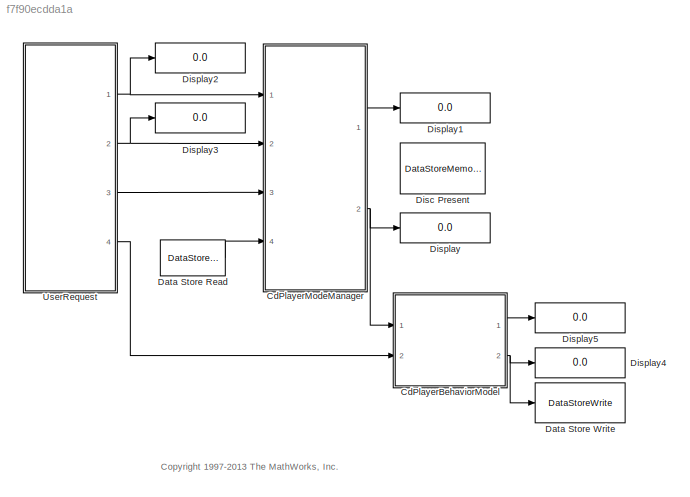
MODEL slx_f7f90ecdda1a
KIND model
CONFIG AbsTol = auto
CONFIG EnableMultiTasking = on
CONFIG FixedStep = 1
CONFIG MaxStep = auto
CONFIG MinStep = auto
CONFIG PreLoadFcn = defaultRadioRequestMode = RadioRequestMode.OFF;\ndefaultCdRequestMode = CdRequestMode.EMPTY;\n
CONFIG RelTol = 1e-3
CONFIG SampleTimeConstraint = Unconstrained
CONFIG Solver = FixedStepDiscrete
CONFIG SolverName = FixedStepDiscrete
CONFIG StartFcn = clear sfcdplayerhelper;\nsfcdplayergui;\n
CONFIG StartTime = 0.0
CONFIG StopFcn = delete(sfcdplayergui);
CONFIG StopTime = inf
WORKSPACE source: MATLAB code (in-file)
WORKSPACE Ts = 0.01
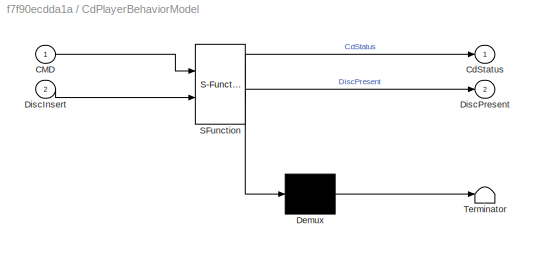
BLOCK [SubSystem] CdPlayerBehaviorModel
  ErrorFcn = Stateflow.Translate.translate
  PermitHierarchicalResolution = ExplicitOnly
  Ports = [2, 2]
  RequestExecContextInheritance = off
  SFBlockType = Chart
  TreatAsAtomicUnit = on
  Variant = off
BLOCK [Demux] CdPlayerBehaviorModel/ Demux 
  Outputs = 1
  Ports = [1, 1]
BLOCK [Outport] CdPlayerBehaviorModel/ DiscPresent
  IconDisplay = Port number
  Port = 2
BLOCK [S-Function] CdPlayerBehaviorModel/ SFunction 
  EnableBusSupport = off
  FunctionName = sf_sfun
  Parameters = Ts
  PortCounts = [2 3]
  Ports = [2, 3]
  SFcnIsStateOwnerBlock = off
  SFunctionDeploymentMode = off
  Tag = Stateflow S-Function sf_cdplayer 4
BLOCK [Terminator] CdPlayerBehaviorModel/ Terminator 
BLOCK [Inport] CdPlayerBehaviorModel/CMD
  IconDisplay = Port number
BLOCK [Outport] CdPlayerBehaviorModel/CdStatus
  IconDisplay = Port number
BLOCK [Inport] CdPlayerBehaviorModel/DiscInsert
  IconDisplay = Port number
  Port = 2
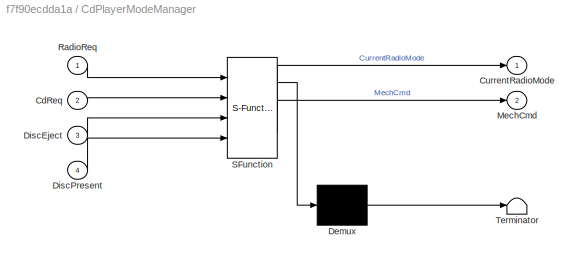
BLOCK [SubSystem] CdPlayerModeManager
  ErrorFcn = Stateflow.Translate.translate
  PermitHierarchicalResolution = ExplicitOnly
  Ports = [4, 2]
  RequestExecContextInheritance = off
  SFBlockType = Chart
  TreatAsAtomicUnit = on
  Variant = off
BLOCK [Demux] CdPlayerModeManager/ Demux 
  Outputs = 1
  Ports = [1, 1]
BLOCK [S-Function] CdPlayerModeManager/ SFunction 
  EnableBusSupport = off
  FunctionName = sf_sfun
  PortCounts = [4 3]
  Ports = [4, 3]
  SFcnIsStateOwnerBlock = off
  SFunctionDeploymentMode = off
  Tag = Stateflow S-Function sf_cdplayer 1
BLOCK [Terminator] CdPlayerModeManager/ Terminator 
BLOCK [Inport] CdPlayerModeManager/CdReq
  IconDisplay = Port number
  Port = 2
BLOCK [Outport] CdPlayerModeManager/CurrentRadioMode
  IconDisplay = Port number
BLOCK [Inport] CdPlayerModeManager/DiscEject
  IconDisplay = Port number
  Port = 3
BLOCK [Inport] CdPlayerModeManager/DiscPresent
  IconDisplay = Port number
  Port = 4
BLOCK [Outport] CdPlayerModeManager/MechCmd
  IconDisplay = Port number
  Port = 2
BLOCK [Inport] CdPlayerModeManager/RadioReq
  IconDisplay = Port number
BLOCK [DataStoreRead] Data Store Read
  DataStoreName = DiscPresent
  Ports = [0, 1]
  SampleTime = 0
BLOCK [DataStoreWrite] Data Store Write
  DataStoreName = DiscPresent
  Ports = [1]
BLOCK [DataStoreMemory] Disc Present
  DataStoreName = DiscPresent
  ShowAdditionalParam = off
BLOCK [Display] Display
  Decimation = 1
  Ports = [1]
BLOCK [Display] Display1
  Decimation = 1
  Ports = [1]
BLOCK [Display] Display2
  Decimation = 1
  Ports = [1]
BLOCK [Display] Display3
  Decimation = 1
  Ports = [1]
BLOCK [Display] Display4
  Decimation = 1
  Ports = [1]
BLOCK [Display] Display5
  Decimation = 1
  Ports = [1]
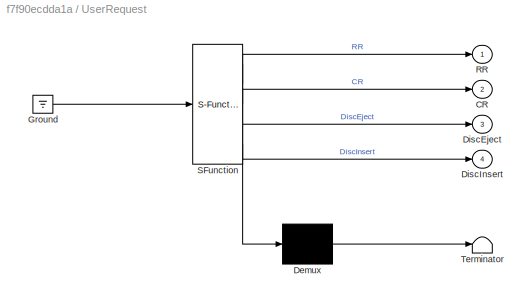
BLOCK [SubSystem] UserRequest
  ErrorFcn = Stateflow.Translate.translate
  PermitHierarchicalResolution = ExplicitOnly
  Ports = [0, 4]
  RequestExecContextInheritance = off
  SFBlockType = Chart
  TreatAsAtomicUnit = on
  Variant = off
BLOCK [Demux] UserRequest/ Demux 
  Outputs = 1
  Ports = [1, 1]
BLOCK [Ground] UserRequest/ Ground 
BLOCK [S-Function] UserRequest/ SFunction 
  EnableBusSupport = off
  FunctionName = sf_sfun
  PortCounts = [1 5]
  Ports = [1, 5]
  SFcnIsStateOwnerBlock = off
  SFunctionDeploymentMode = off
  Tag = Stateflow S-Function sf_cdplayer 2
BLOCK [Terminator] UserRequest/ Terminator 
BLOCK [Outport] UserRequest/CR
  IconDisplay = Port number
  Port = 2
BLOCK [Outport] UserRequest/DiscEject
  IconDisplay = Port number
  Port = 3
BLOCK [Outport] UserRequest/DiscInsert
  IconDisplay = Port number
  Port = 4
BLOCK [Outport] UserRequest/RR
  IconDisplay = Port number
ANNOTATION (root): <copyright redacted>
LINE CdPlayerBehaviorModel:1 -> Display5:1
NET CdPlayerBehaviorModel:2 -> Data Store Write:1, Display4:1
LINE CdPlayerModeManager:1 -> Display1:1
NET CdPlayerModeManager:2 -> CdPlayerBehaviorModel:1, Display:1
LINE Data Store Read:1 -> CdPlayerModeManager:4
NET UserRequest:1 -> CdPlayerModeManager:1, Display2:1
NET UserRequest:2 -> CdPlayerModeManager:2, Display3:1
LINE UserRequest:3 -> CdPlayerModeManager:3
LINE UserRequest:4 -> CdPlayerBehaviorModel:2
note: NET lines group one-source signal fan-out (src -> all destinations, sorted); 1:1 wires keep LINE
CHART CdPlayerModeManager states=12 transitions=22
  STATE_LABEL 'ModeManager'
  STATE_LABEL 'Standby\nentry: CurrentRadioMode = OFF;\nMechCmd = STOP;'
  STATE_LABEL 'ON'
  STATE_LABEL 'CDMode\nen:\nCurrentRadioMode = CD;\nMechCmd = STOP;\nex: MechCmd = STOP;'
  STATE_LABEL 'Play'
  STATE_LABEL 'Normal\nentry: MechCmd = PLAY;'
  STATE_LABEL 'Rew\nentry: MechCmd = REW;'
  STATE_LABEL 'FastForward\nentry: MechCmd = FF;'
  STATE_LABEL '[CdReq == PLAY && !in(Normal)]'
  STATE_LABEL '[CdReq == REW && !in(Rew)]'
  STATE_LABEL '[CdReq == FF && !in(FastForward)]'
  STATE_LABEL 'Stop\nentry: MechCmd = STOP;'
  STATE_LABEL '[DiscPresent]'
  STATE_LABEL '[CdReq==STOP]'
  STATE_LABEL '[DiscPresent && CdReq==PLAY]'
  STATE_LABEL 'AMMode\nentry:\nCurrentRadioMode = AM;\nMechCmd = STOP;'
  STATE_LABEL 'FMMode\nentry:\nCurrentRadioMode = FM;\nMechCmd = STOP;'
  STATE_LABEL '[RadioReq==CD]'
  STATE_LABEL '[hasChanged(RadioReq)]'
  STATE_LABEL '[RadioReq==AM]'
  STATE_LABEL '/*RadioReq==FM*/'
  STATE_LABEL 'H'
  STATE_LABEL '[RadioReq != OFF]'
  STATE_LABEL '[RadioReq == OFF]'
  STATE_LABEL 'H'
  STATE_LABEL 'Standby\nentry: CurrentRadioMode = OFF;\nMechCmd = STOP;'
  STATE_LABEL 'ON'
  STATE_LABEL 'CDMode\nen:\nCurrentRadioMode = CD;\nMechCmd = STOP;\nex: MechCmd = STOP;'
  STATE_LABEL 'Play'
  STATE_LABEL 'Normal\nentry: MechCmd = PLAY;'
  STATE_LABEL 'Rew\nentry: MechCmd = REW;'
  STATE_LABEL 'FastForward\nentry: MechCmd = FF;'
  STATE_LABEL '[CdReq == PLAY && !in(Normal)]'
  STATE_LABEL '[CdReq == REW && !in(Rew)]'
  STATE_LABEL '[CdReq == FF && !in(FastForward)]'
  STATE_LABEL 'Stop\nentry: MechCmd = STOP;'
  STATE_LABEL '[DiscPresent]'
  STATE_LABEL '[CdReq==STOP]'
  STATE_LABEL '[DiscPresent && CdReq==PLAY]'
  STATE_LABEL 'AMMode\nentry:\nCurrentRadioMode = AM;\nMechCmd = STOP;'
CHART UserRequest states=0 transitions=2
CHART CdPlayerBehaviorModel states=8 transitions=10
  STATE_LABEL 'Empty\nCdStatus = EMPTY;'
  STATE_LABEL 'Inserting\nCdStatus = DISCINSERT;'
  STATE_LABEL 'Ejecting\nCdStatus = EJECT;'
  STATE_LABEL 'DiscPresent'
  STATE_LABEL 'STOP\nCdStatus = STOP;'
  STATE_LABEL 'PLAY\nCdStatus = PLAY;'
  STATE_LABEL 'REW\nCdStatus = REW;'
  STATE_LABEL 'FF\nCdStatus = FF;'
  STATE_LABEL '[CMD == STOP]'
  STATE_LABEL '[CMD == PLAY]'
  STATE_LABEL '[CMD == REW]'
  STATE_LABEL '[CMD == FF]'
  STATE_LABEL 'STOP\nCdStatus = STOP;'
  STATE_LABEL 'PLAY\nCdStatus = PLAY;'
  STATE_LABEL 'REW\nCdStatus = REW;'
  STATE_LABEL 'FF\nCdStatus = FF;'
